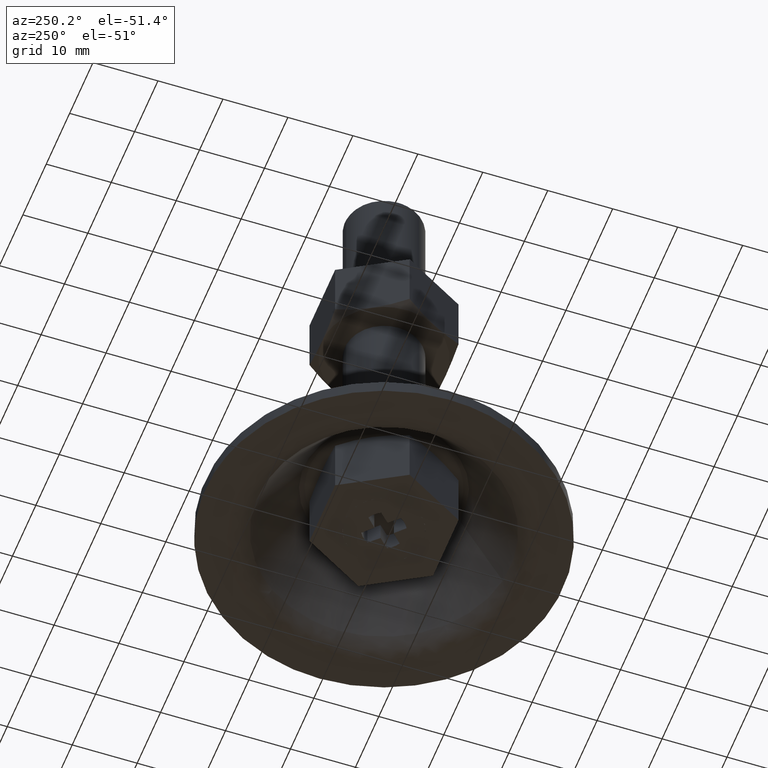
[diagram: clean part render]
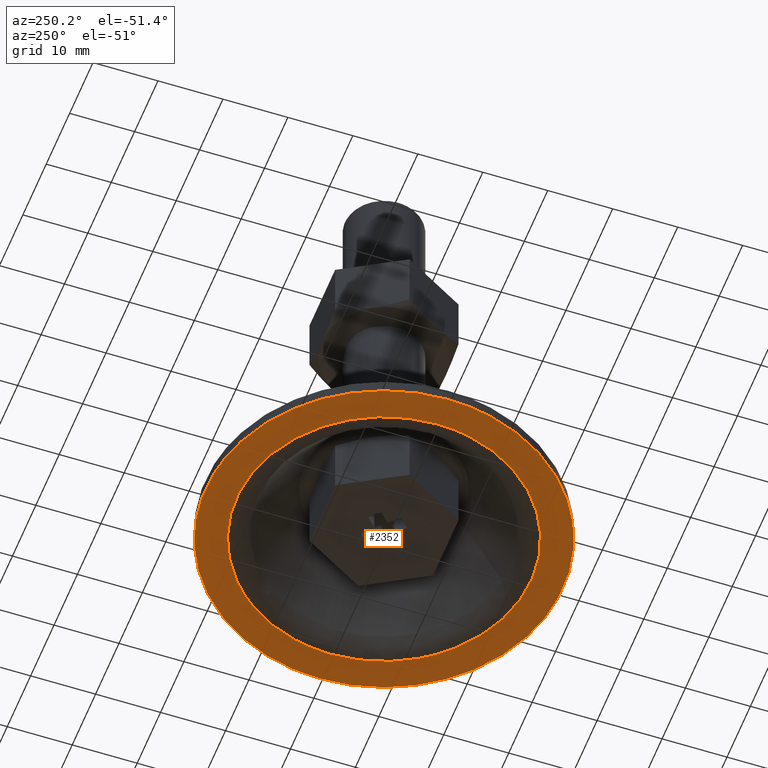
[diagram: same view with one face highlighted and labeled with its STEP entity id]
A machine part, auxiliary view. The second image highlights one B-rep face of the part: STEP entity #2352.
In plain terms, the highlighted face is a freeform B-spline surface patch.
Its self-contained STEP definition (entity closure, byte-faithful):
#1265=CARTESIAN_POINT('',(-3.245920642316416,27.307764448657171,1.201540E-013));
#1266=VERTEX_POINT('',#1265);
#1267=CARTESIAN_POINT('',(27.500000000000000,0.0,0.0));
#1268=VERTEX_POINT('',#1267);
#1269=CARTESIAN_POINT('',(-3.245920642316415,27.307764448657178,1.201540E-013));
#1270=CARTESIAN_POINT('',(-1.628652775052229,27.500000000000004,0.0));
#1271=CARTESIAN_POINT('',(0.0,27.500000000000000,0.0));
#1272=CARTESIAN_POINT('',(27.499999999999993,27.499999999999993,0.0));
#1273=CARTESIAN_POINT('',(27.500000000000000,0.0,0.0));
#1281=(BOUNDED_CURVE()B_SPLINE_CURVE(2,(#1269,#1270,#1271,#1272,#1273),.UNSPECIFIED.,.F.,.U.)B_SPLINE_CURVE_WITH_KNOTS((3,2,3),(0.229562602309926,0.250000000000000,0.500000000000000),.UNSPECIFIED.)CURVE()GEOMETRIC_REPRESENTATION_ITEM()RATIONAL_B_SPLINE_CURVE((0.956027006630105,0.976056099225535,1.0,0.707106781186547,1.0))REPRESENTATION_ITEM(''));
#1282=EDGE_CURVE('',#1266,#1268,#1281,.T.);
#1323=CARTESIAN_POINT('',(1.678815725088055,-27.448708125535351,-4.838213E-013));
#1324=VERTEX_POINT('',#1323);
#1330=CARTESIAN_POINT('',(27.500000000000000,0.0,0.0));
#1331=CARTESIAN_POINT('',(27.499999999999993,-25.869434886056073,0.0));
#1332=CARTESIAN_POINT('',(1.678815725088055,-27.448708125535351,-4.838213E-013));
#1340=(BOUNDED_CURVE()B_SPLINE_CURVE(2,(#1330,#1331,#1332),.UNSPECIFIED.,.F.,.U.)B_SPLINE_CURVE_WITH_KNOTS((3,3),(0.500000000000000,0.739333082383705),.UNSPECIFIED.)CURVE()GEOMETRIC_REPRESENTATION_ITEM()RATIONAL_B_SPLINE_CURVE((1.0,0.719603852528365,0.976072299159950))REPRESENTATION_ITEM(''));
#1341=EDGE_CURVE('',#1268,#1324,#1340,.T.);
#1364=CARTESIAN_POINT('',(-27.500000000000000,0.0,0.0));
#1365=VERTEX_POINT('',#1364);
#1366=CARTESIAN_POINT('',(-27.500000000000000,0.0,0.0));
#1367=CARTESIAN_POINT('',(-27.499999999999996,24.424818208393365,0.0));
#1368=CARTESIAN_POINT('',(-3.245920642316415,27.307764448657178,1.201540E-013));
#1376=(BOUNDED_CURVE()B_SPLINE_CURVE(2,(#1366,#1367,#1368),.UNSPECIFIED.,.F.,.U.)B_SPLINE_CURVE_WITH_KNOTS((3,3),(0.0,0.229562602309926),.UNSPECIFIED.)CURVE()GEOMETRIC_REPRESENTATION_ITEM()RATIONAL_B_SPLINE_CURVE((1.0,0.731050681961013,0.956027006630105))REPRESENTATION_ITEM(''));
#1377=EDGE_CURVE('',#1365,#1266,#1376,.T.);
#1379=CARTESIAN_POINT('',(1.678815725088055,-27.448708125535351,-4.838213E-013));
#1380=CARTESIAN_POINT('',(0.840191407857188,-27.500000000000000,0.0));
#1381=CARTESIAN_POINT('',(0.0,-27.500000000000000,0.0));
#1382=CARTESIAN_POINT('',(-27.499999999999993,-27.499999999999993,0.0));
#1383=CARTESIAN_POINT('',(-27.500000000000000,0.0,0.0));
#1391=(BOUNDED_CURVE()B_SPLINE_CURVE(2,(#1379,#1380,#1381,#1382,#1383),.UNSPECIFIED.,.F.,.U.)B_SPLINE_CURVE_WITH_KNOTS((3,2,3),(0.739333082383705,0.750000000000000,1.0),.UNSPECIFIED.)CURVE()GEOMETRIC_REPRESENTATION_ITEM()RATIONAL_B_SPLINE_CURVE((0.976072299159950,0.987502928658182,1.0,0.707106781186547,1.0))REPRESENTATION_ITEM(''));
#1392=EDGE_CURVE('',#1324,#1365,#1391,.T.);
#1868=CARTESIAN_POINT('',(15.576604972391930,-16.500386319694339,6.348077E-016));
#1869=VERTEX_POINT('',#1868);
#1883=CARTESIAN_POINT('',(-22.691262000810649,0.0,0.0));
#1884=VERTEX_POINT('',#1883);
#1885=CARTESIAN_POINT('',(15.576604972391930,-16.500386319694336,6.348077E-016));
#1886=CARTESIAN_POINT('',(9.018575121570020,-22.691262000810653,0.0));
#1887=CARTESIAN_POINT('',(0.0,-22.691262000810649,0.0));
#1888=CARTESIAN_POINT('',(-22.691262000810642,-22.691262000810642,0.0));
#1889=CARTESIAN_POINT('',(-22.691262000810649,0.0,0.0));
#1897=(BOUNDED_CURVE()B_SPLINE_CURVE(2,(#1885,#1886,#1887,#1888,#1889),.UNSPECIFIED.,.F.,.U.)B_SPLINE_CURVE_WITH_KNOTS((3,2,3),(0.629344514439696,0.750000000000000,1.0),.UNSPECIFIED.)CURVE()GEOMETRIC_REPRESENTATION_ITEM()RATIONAL_B_SPLINE_CURVE((0.853730296276501,0.858643305866970,1.0,0.707106781186547,1.0))REPRESENTATION_ITEM(''));
#1898=EDGE_CURVE('',#1869,#1884,#1897,.T.);
#1900=CARTESIAN_POINT('',(18.188566464869879,13.567218622125781,6.074387E-016));
#1901=VERTEX_POINT('',#1900);
#1902=CARTESIAN_POINT('',(-22.691262000810649,0.0,0.0));
#1903=CARTESIAN_POINT('',(-22.691262000810642,22.691262000810642,0.0));
#1904=CARTESIAN_POINT('',(0.0,22.691262000810649,0.0));
#1905=CARTESIAN_POINT('',(11.382758460453822,22.691262000810649,0.0));
#1906=CARTESIAN_POINT('',(18.188566464869879,13.567218622125777,6.074387E-016));
#1914=(BOUNDED_CURVE()B_SPLINE_CURVE(2,(#1902,#1903,#1904,#1905,#1906),.UNSPECIFIED.,.F.,.U.)B_SPLINE_CURVE_WITH_KNOTS((3,2,3),(0.0,0.250000000000000,0.396843395504842),.UNSPECIFIED.)CURVE()GEOMETRIC_REPRESENTATION_ITEM()RATIONAL_B_SPLINE_CURVE((1.0,0.707106781186547,1.0,0.827962260916359,0.858025367928862))REPRESENTATION_ITEM(''));
#1915=EDGE_CURVE('',#1884,#1901,#1914,.T.);
#1955=CARTESIAN_POINT('',(22.691262000810649,0.0,0.0));
#1956=VERTEX_POINT('',#1955);
#1957=CARTESIAN_POINT('',(18.188566464869879,13.567218622125777,6.074387E-016));
#1958=CARTESIAN_POINT('',(22.691262000810649,7.530787773137609,0.0));
#1959=CARTESIAN_POINT('',(22.691262000810649,0.0,0.0));
#1967=(BOUNDED_CURVE()B_SPLINE_CURVE(2,(#1957,#1958,#1959),.UNSPECIFIED.,.F.,.U.)B_SPLINE_CURVE_WITH_KNOTS((3,3),(0.396843395504842,0.500000000000000),.UNSPECIFIED.)CURVE()GEOMETRIC_REPRESENTATION_ITEM()RATIONAL_B_SPLINE_CURVE((0.858025367928862,0.879144520270188,1.0))REPRESENTATION_ITEM(''));
#1968=EDGE_CURVE('',#1901,#1956,#1967,.T.);
#1970=CARTESIAN_POINT('',(22.691262000810649,0.0,0.0));
#1971=CARTESIAN_POINT('',(22.691262000810653,-9.784046478526998,0.0));
#1972=CARTESIAN_POINT('',(15.576604972391930,-16.500386319694336,6.348077E-016));
#1980=(BOUNDED_CURVE()B_SPLINE_CURVE(2,(#1970,#1971,#1972),.UNSPECIFIED.,.F.,.U.)B_SPLINE_CURVE_WITH_KNOTS((3,3),(0.500000000000000,0.629344514439695),.UNSPECIFIED.)CURVE()GEOMETRIC_REPRESENTATION_ITEM()RATIONAL_B_SPLINE_CURVE((1.0,0.848463475319578,0.853730296276501))REPRESENTATION_ITEM(''));
#1981=EDGE_CURVE('',#1956,#1869,#1980,.T.);
#2335=CARTESIAN_POINT('',(-30.247249893399331,-30.246580567842720,0.0));
#2336=CARTESIAN_POINT('',(30.247251368614290,-30.246580567842720,0.0));
#2337=CARTESIAN_POINT('',(-30.247249893399331,30.246749725824589,0.0));
#2338=CARTESIAN_POINT('',(30.247251368614290,30.246749725824589,0.0));
#2339=B_SPLINE_SURFACE_WITH_KNOTS('',1,1,((#2335,#2337),(#2336,#2338)),.UNSPECIFIED.,.F.,.F.,.U.,(2,2),(2,2),(0.0,60.494501262013607),(0.0,60.493330293667313),.UNSPECIFIED.);
#2340=ORIENTED_EDGE('',*,*,#1377,.T.);
#2341=ORIENTED_EDGE('',*,*,#1282,.T.);
#2342=ORIENTED_EDGE('',*,*,#1341,.T.);
#2343=ORIENTED_EDGE('',*,*,#1392,.T.);
#2344=EDGE_LOOP('',(#2340,#2341,#2342,#2343));
#2345=FACE_OUTER_BOUND('',#2344,.T.);
#2346=ORIENTED_EDGE('',*,*,#1915,.F.);
#2347=ORIENTED_EDGE('',*,*,#1898,.F.);
#2348=ORIENTED_EDGE('',*,*,#1981,.F.);
#2349=ORIENTED_EDGE('',*,*,#1968,.F.);
#2350=EDGE_LOOP('',(#2346,#2347,#2348,#2349));
#2351=FACE_BOUND('',#2350,.T.);
#2352=ADVANCED_FACE('',(#2345,#2351),#2339,.F.);